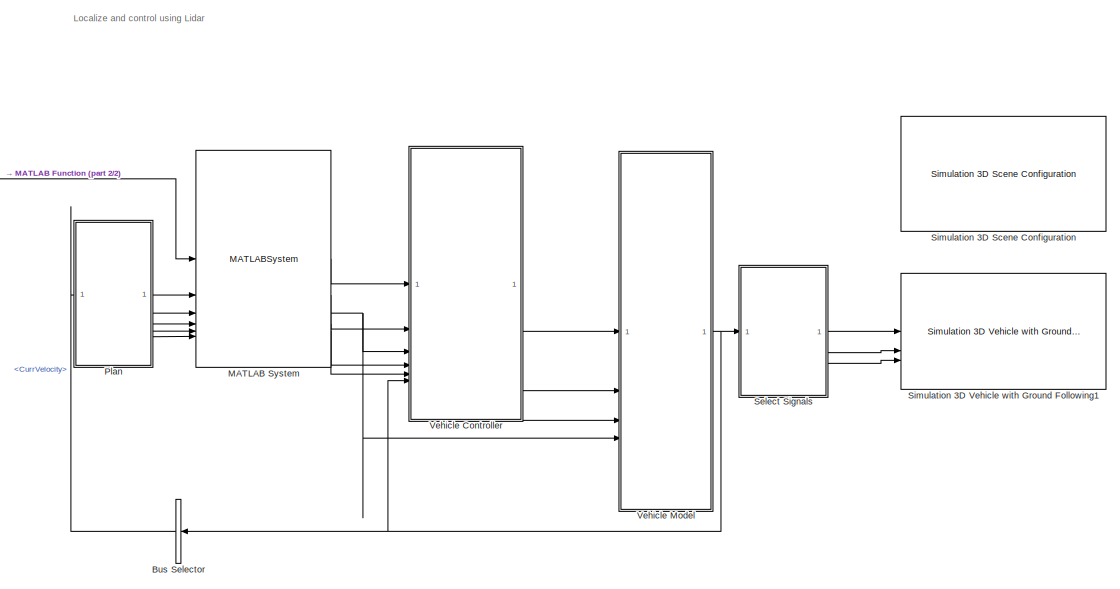
[diagram: root canvas - part 1/2, center side, full height]
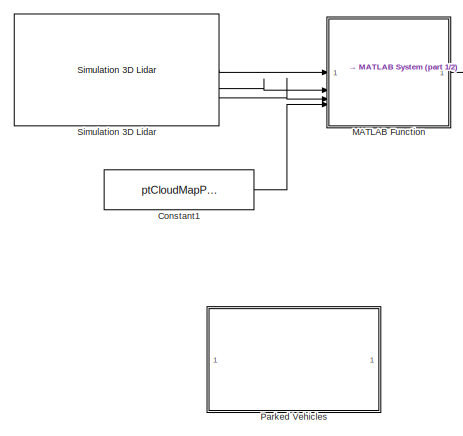
[diagram: root canvas - part 2/2, middle left region]
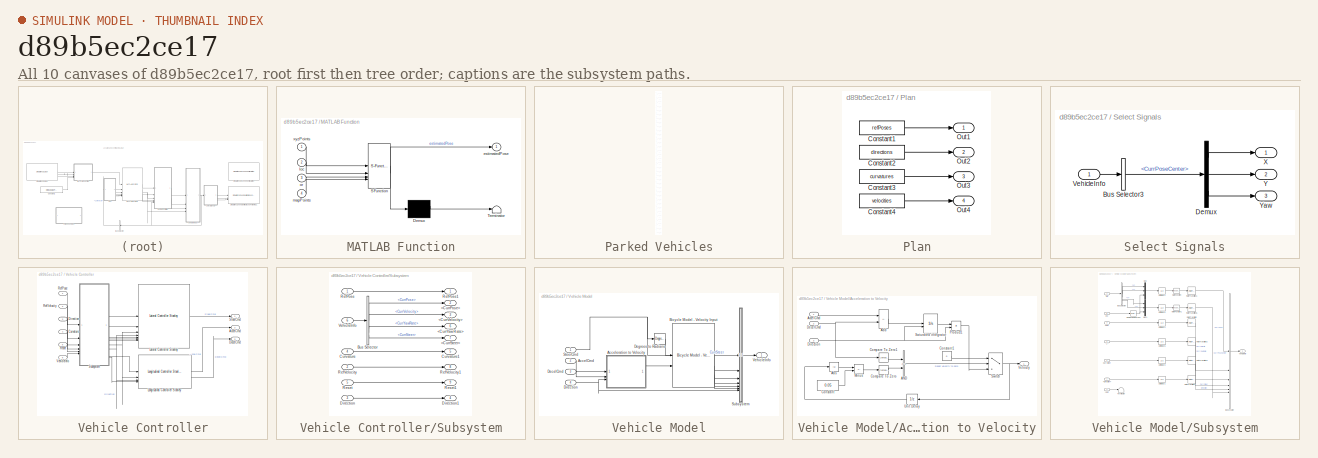
[diagram: thumbnail index - all 10 canvases of the model, root first then tree order]
MODEL slx_d89b5ec2ce17
KIND model
CONFIG AbsTol = auto
CONFIG EnableMultiTasking = off
CONFIG FixedStep = auto
CONFIG MaxStep = auto
CONFIG MinStep = auto
CONFIG PreLoadFcn = data = load('ReferencePathForward.mat');\n\nload('parkingLotPCMapPoints.mat','ptCloudMapPoints');\n\nstartPose = [25.533357  30.0519086033855 180.596809];\n\nhelperSLCreateUtilityBus(1);
CONFIG RelTol = 1e-3
CONFIG SampleTimeConstraint = Unconstrained
CONFIG SolverName = VariableStepAuto
CONFIG StartTime = 0.0
CONFIG StopTime = 28.964
BLOCK [BusSelector] Bus Selector
  OutputSignals = CurrVelocity
BLOCK [Constant] Constant1
  OutDataTypeStr = single
  Value = ptCloudMapPoints
BLOCK [SubSystem] MATLAB Function
  ErrorFcn = Stateflow.Translate.translate
  PermitHierarchicalResolution = ExplicitOnly
  SFBlockType = MATLAB Function
  TreatAsAtomicUnit = on
BLOCK [Demux] MATLAB Function/ Demux 
  Outputs = 1
BLOCK [S-Function] MATLAB Function/ SFunction 
  EnableBusSupport = off
  FunctionName = sf_sfun
  PortCounts = [4 2]
  SFcnIsStateOwnerBlock = off
  SFunctionDeploymentMode = off
  Tag = Stateflow S-Function 2
BLOCK [Terminator] MATLAB Function/ Terminator 
BLOCK [Outport] MATLAB Function/estimatedPose
BLOCK [Inport] MATLAB Function/loc
  Port = 2
BLOCK [Inport] MATLAB Function/mapPoints
  Port = 4
BLOCK [Inport] MATLAB Function/or
  Port = 3
BLOCK [Inport] MATLAB Function/xyzPoints
BLOCK [MATLABSystem] MATLAB System
  HasResetOutput = on
  MaskDisplay = disp(['Helper' char(10) 'Path' char(10) 'Analyzer']);\nport_label('input',1,'CurrPose');\nport_label('input',2,'CurrVelocity');\nport_label('input',3,'RefPoses');\nport_label('input',4,'Directions');\nport_label('input',5,'Curvatures');\nport_label('input',6,'RefVelocities');\nport_label('output',1,'RefPose');\nport_label('output',2,'RefVelocity');\nport_label('output',3,'Direction');\nport_label('output',4...<+46ch>
  MaskType = HelperPathAnalyzer
  SimulateUsing = Interpreted execution
  System = HelperPathAnalyzer
  Wheelbase = 2.6
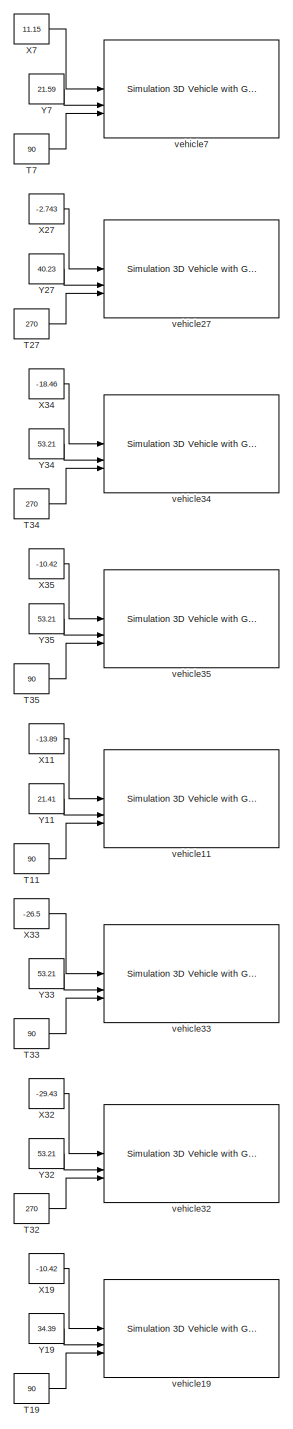
[diagram: Parked Vehicles - part 1/7, full width, top band]
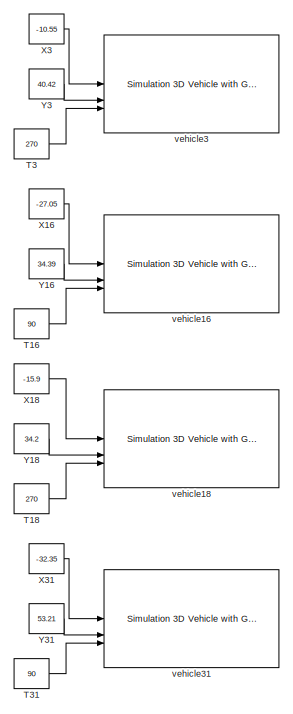
[diagram: Parked Vehicles - part 2/7, full width, top band]
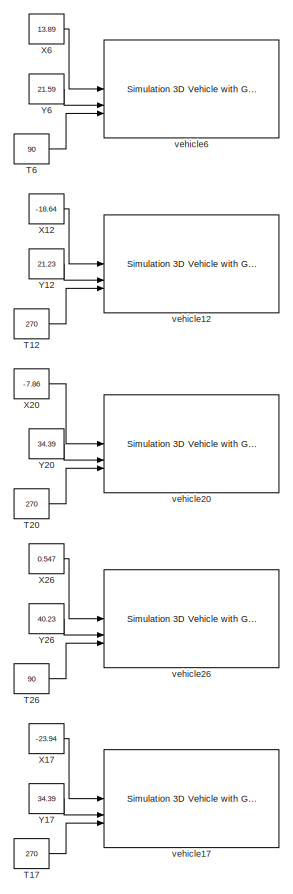
[diagram: Parked Vehicles - part 3/7, full width, middle band]
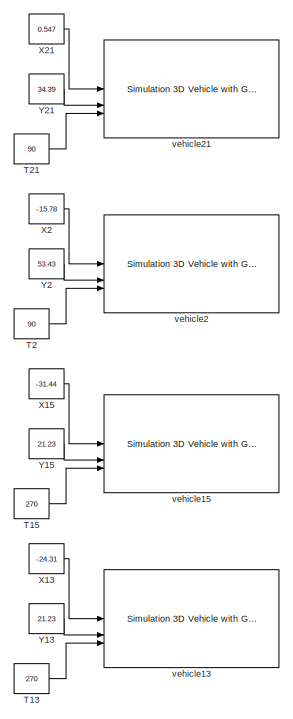
[diagram: Parked Vehicles - part 4/7, full width, middle band]
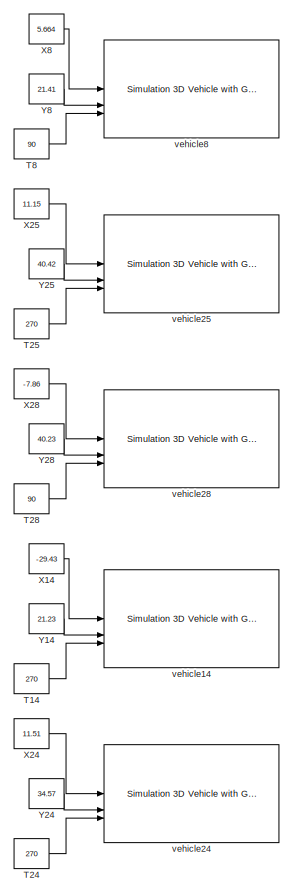
[diagram: Parked Vehicles - part 5/7, full width, bottom band]
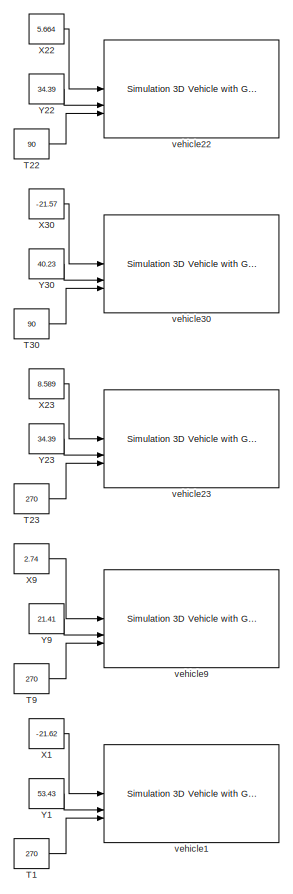
[diagram: Parked Vehicles - part 6/7, full width, bottom band]
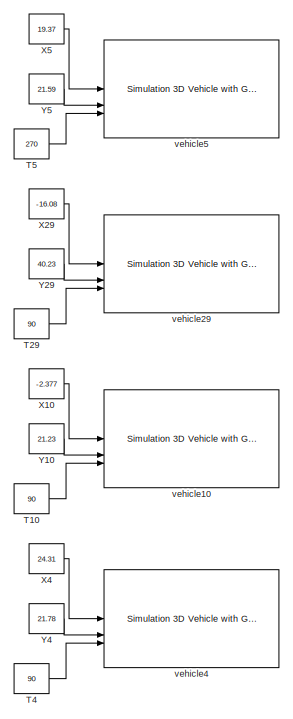
[diagram: Parked Vehicles - part 7/7, full width, bottom band]
BLOCK [SubSystem] Parked Vehicles
BLOCK [Constant] Parked Vehicles/T1
  Value = 270
BLOCK [Constant] Parked Vehicles/T10
  Value = 90
BLOCK [Constant] Parked Vehicles/T11
  Value = 90
BLOCK [Constant] Parked Vehicles/T12
  Value = 270
BLOCK [Constant] Parked Vehicles/T13
  Value = 270
BLOCK [Constant] Parked Vehicles/T14
  Value = 270
BLOCK [Constant] Parked Vehicles/T15
  Value = 270
BLOCK [Constant] Parked Vehicles/T16
  Value = 90
BLOCK [Constant] Parked Vehicles/T17
  Value = 270
BLOCK [Constant] Parked Vehicles/T18
  Value = 270
BLOCK [Constant] Parked Vehicles/T19
  Value = 90
BLOCK [Constant] Parked Vehicles/T2
  Value = 90
BLOCK [Constant] Parked Vehicles/T20
  Value = 270
BLOCK [Constant] Parked Vehicles/T21
  Value = 90
BLOCK [Constant] Parked Vehicles/T22
  Value = 90
BLOCK [Constant] Parked Vehicles/T23
  Value = 270
BLOCK [Constant] Parked Vehicles/T24
  Value = 270
BLOCK [Constant] Parked Vehicles/T25
  Value = 270
BLOCK [Constant] Parked Vehicles/T26
  Value = 90
BLOCK [Constant] Parked Vehicles/T27
  Value = 270
BLOCK [Constant] Parked Vehicles/T28
  Value = 90
BLOCK [Constant] Parked Vehicles/T29
  Value = 90
BLOCK [Constant] Parked Vehicles/T3
  Value = 270
BLOCK [Constant] Parked Vehicles/T30
  Value = 90
BLOCK [Constant] Parked Vehicles/T31
  Value = 90
BLOCK [Constant] Parked Vehicles/T32
  Value = 270
BLOCK [Constant] Parked Vehicles/T33
  Value = 90
BLOCK [Constant] Parked Vehicles/T34
  Value = 270
BLOCK [Constant] Parked Vehicles/T35
  Value = 90
BLOCK [Constant] Parked Vehicles/T4
  Value = 90
BLOCK [Constant] Parked Vehicles/T5
  Value = 270
BLOCK [Constant] Parked Vehicles/T6
  Value = 90
BLOCK [Constant] Parked Vehicles/T7
  Value = 90
BLOCK [Constant] Parked Vehicles/T8
  Value = 90
BLOCK [Constant] Parked Vehicles/T9
  Value = 270
BLOCK [Constant] Parked Vehicles/X1
  Value = -21.62
BLOCK [Constant] Parked Vehicles/X10
  Value = -2.377
BLOCK [Constant] Parked Vehicles/X11
  Value = -13.89
BLOCK [Constant] Parked Vehicles/X12
  Value = -18.64
BLOCK [Constant] Parked Vehicles/X13
  Value = -24.31
BLOCK [Constant] Parked Vehicles/X14
  Value = -29.43
BLOCK [Constant] Parked Vehicles/X15
  Value = -31.44
BLOCK [Constant] Parked Vehicles/X16
  Value = -27.05
BLOCK [Constant] Parked Vehicles/X17
  Value = -23.94
BLOCK [Constant] Parked Vehicles/X18
  Value = -15.9
BLOCK [Constant] Parked Vehicles/X19
  Value = -10.42
BLOCK [Constant] Parked Vehicles/X2
  Value = -15.78
BLOCK [Constant] Parked Vehicles/X20
  Value = -7.86
BLOCK [Constant] Parked Vehicles/X21
  Value = 0.547
BLOCK [Constant] Parked Vehicles/X22
  Value = 5.664
BLOCK [Constant] Parked Vehicles/X23
  Value = 8.589
BLOCK [Constant] Parked Vehicles/X24
  Value = 11.51
BLOCK [Constant] Parked Vehicles/X25
  Value = 11.15
BLOCK [Constant] Parked Vehicles/X26
  Value = 0.547
BLOCK [Constant] Parked Vehicles/X27
  Value = -2.743
BLOCK [Constant] Parked Vehicles/X28
  Value = -7.86
BLOCK [Constant] Parked Vehicles/X29
  Value = -16.08
BLOCK [Constant] Parked Vehicles/X3
  Value = -10.55
BLOCK [Constant] Parked Vehicles/X30
  Value = -21.57
BLOCK [Constant] Parked Vehicles/X31
  Value = -32.35
BLOCK [Constant] Parked Vehicles/X32
  Value = -29.43
BLOCK [Constant] Parked Vehicles/X33
  Value = -26.5
BLOCK [Constant] Parked Vehicles/X34
  Value = -18.46
BLOCK [Constant] Parked Vehicles/X35
  Value = -10.42
BLOCK [Constant] Parked Vehicles/X4
  Value = 24.31
BLOCK [Constant] Parked Vehicles/X5
  Value = 19.37
BLOCK [Constant] Parked Vehicles/X6
  Value = 13.89
BLOCK [Constant] Parked Vehicles/X7
  Value = 11.15
BLOCK [Constant] Parked Vehicles/X8
  Value = 5.664
BLOCK [Constant] Parked Vehicles/X9
  Value = 2.74
BLOCK [Constant] Parked Vehicles/Y1
  Value = 53.43
BLOCK [Constant] Parked Vehicles/Y10
  Value = 21.23
BLOCK [Constant] Parked Vehicles/Y11
  Value = 21.41
BLOCK [Constant] Parked Vehicles/Y12
  Value = 21.23
BLOCK [Constant] Parked Vehicles/Y13
  Value = 21.23
BLOCK [Constant] Parked Vehicles/Y14
  Value = 21.23
BLOCK [Constant] Parked Vehicles/Y15
  Value = 21.23
BLOCK [Constant] Parked Vehicles/Y16
  Value = 34.39
BLOCK [Constant] Parked Vehicles/Y17
  Value = 34.39
BLOCK [Constant] Parked Vehicles/Y18
  Value = 34.2
BLOCK [Constant] Parked Vehicles/Y19
  Value = 34.39
BLOCK [Constant] Parked Vehicles/Y2
  Value = 53.43
BLOCK [Constant] Parked Vehicles/Y20
  Value = 34.39
BLOCK [Constant] Parked Vehicles/Y21
  Value = 34.39
BLOCK [Constant] Parked Vehicles/Y22
  Value = 34.39
BLOCK [Constant] Parked Vehicles/Y23
  Value = 34.39
BLOCK [Constant] Parked Vehicles/Y24
  Value = 34.57
BLOCK [Constant] Parked Vehicles/Y25
  Value = 40.42
BLOCK [Constant] Parked Vehicles/Y26
  Value = 40.23
BLOCK [Constant] Parked Vehicles/Y27
  Value = 40.23
BLOCK [Constant] Parked Vehicles/Y28
  Value = 40.23
BLOCK [Constant] Parked Vehicles/Y29
  Value = 40.23
BLOCK [Constant] Parked Vehicles/Y3
  Value = 40.42
BLOCK [Constant] Parked Vehicles/Y30
  Value = 40.23
BLOCK [Constant] Parked Vehicles/Y31
  Value = 53.21
BLOCK [Constant] Parked Vehicles/Y32
  Value = 53.21
BLOCK [Constant] Parked Vehicles/Y33
  Value = 53.21
BLOCK [Constant] Parked Vehicles/Y34
  Value = 53.21
BLOCK [Constant] Parked Vehicles/Y35
  Value = 53.21
BLOCK [Constant] Parked Vehicles/Y4
  Value = 21.78
BLOCK [Constant] Parked Vehicles/Y5
  Value = 21.59
BLOCK [Constant] Parked Vehicles/Y6
  Value = 21.59
BLOCK [Constant] Parked Vehicles/Y7
  Value = 21.59
BLOCK [Constant] Parked Vehicles/Y8
  Value = 21.41
BLOCK [Constant] Parked Vehicles/Y9
  Value = 21.41
BLOCK [Reference] Parked Vehicles/vehicle1  REF=sim3dautolib/Simulation 3D Vehicle with Ground Following
  LibrarySourceBlock = drivingsim3d/Simulation 3D Vehicle with Ground Following
  Priority = -1
  SourceBlock = sim3dautolib/Simulation 3D Vehicle with Ground Following
  SourceType = Simulation 3D Vehicle with Ground Following
BLOCK [Reference] Parked Vehicles/vehicle10  REF=sim3dautolib/Simulation 3D Vehicle with Ground Following
  LibrarySourceBlock = drivingsim3d/Simulation 3D Vehicle with Ground Following
  Priority = -1
  SourceBlock = sim3dautolib/Simulation 3D Vehicle with Ground Following
  SourceType = Simulation 3D Vehicle with Ground Following
BLOCK [Reference] Parked Vehicles/vehicle11  REF=sim3dautolib/Simulation 3D Vehicle with Ground Following
  LibrarySourceBlock = drivingsim3d/Simulation 3D Vehicle with Ground Following
  Priority = -1
  SourceBlock = sim3dautolib/Simulation 3D Vehicle with Ground Following
  SourceType = Simulation 3D Vehicle with Ground Following
BLOCK [Reference] Parked Vehicles/vehicle12  REF=sim3dautolib/Simulation 3D Vehicle with Ground Following
  LibrarySourceBlock = drivingsim3d/Simulation 3D Vehicle with Ground Following
  Priority = -1
  SourceBlock = sim3dautolib/Simulation 3D Vehicle with Ground Following
  SourceType = Simulation 3D Vehicle with Ground Following
BLOCK [Reference] Parked Vehicles/vehicle13  REF=sim3dautolib/Simulation 3D Vehicle with Ground Following
  LibrarySourceBlock = drivingsim3d/Simulation 3D Vehicle with Ground Following
  Priority = -1
  SourceBlock = sim3dautolib/Simulation 3D Vehicle with Ground Following
  SourceType = Simulation 3D Vehicle with Ground Following
BLOCK [Reference] Parked Vehicles/vehicle14  REF=sim3dautolib/Simulation 3D Vehicle with Ground Following
  LibrarySourceBlock = drivingsim3d/Simulation 3D Vehicle with Ground Following
  Priority = -1
  SourceBlock = sim3dautolib/Simulation 3D Vehicle with Ground Following
  SourceType = Simulation 3D Vehicle with Ground Following
BLOCK [Reference] Parked Vehicles/vehicle15  REF=sim3dautolib/Simulation 3D Vehicle with Ground Following
  LibrarySourceBlock = drivingsim3d/Simulation 3D Vehicle with Ground Following
  Priority = -1
  SourceBlock = sim3dautolib/Simulation 3D Vehicle with Ground Following
  SourceType = Simulation 3D Vehicle with Ground Following
BLOCK [Reference] Parked Vehicles/vehicle16  REF=sim3dautolib/Simulation 3D Vehicle with Ground Following
  LibrarySourceBlock = drivingsim3d/Simulation 3D Vehicle with Ground Following
  Priority = -1
  SourceBlock = sim3dautolib/Simulation 3D Vehicle with Ground Following
  SourceType = Simulation 3D Vehicle with Ground Following
BLOCK [Reference] Parked Vehicles/vehicle17  REF=sim3dautolib/Simulation 3D Vehicle with Ground Following
  LibrarySourceBlock = drivingsim3d/Simulation 3D Vehicle with Ground Following
  Priority = -1
  SourceBlock = sim3dautolib/Simulation 3D Vehicle with Ground Following
  SourceType = Simulation 3D Vehicle with Ground Following
BLOCK [Reference] Parked Vehicles/vehicle18  REF=sim3dautolib/Simulation 3D Vehicle with Ground Following
  LibrarySourceBlock = drivingsim3d/Simulation 3D Vehicle with Ground Following
  Priority = -1
  SourceBlock = sim3dautolib/Simulation 3D Vehicle with Ground Following
  SourceType = Simulation 3D Vehicle with Ground Following
BLOCK [Reference] Parked Vehicles/vehicle19  REF=sim3dautolib/Simulation 3D Vehicle with Ground Following
  LibrarySourceBlock = drivingsim3d/Simulation 3D Vehicle with Ground Following
  Priority = -1
  SourceBlock = sim3dautolib/Simulation 3D Vehicle with Ground Following
  SourceType = Simulation 3D Vehicle with Ground Following
BLOCK [Reference] Parked Vehicles/vehicle2  REF=sim3dautolib/Simulation 3D Vehicle with Ground Following
  LibrarySourceBlock = drivingsim3d/Simulation 3D Vehicle with Ground Following
  Priority = -1
  SourceBlock = sim3dautolib/Simulation 3D Vehicle with Ground Following
  SourceType = Simulation 3D Vehicle with Ground Following
BLOCK [Reference] Parked Vehicles/vehicle20  REF=sim3dautolib/Simulation 3D Vehicle with Ground Following
  LibrarySourceBlock = drivingsim3d/Simulation 3D Vehicle with Ground Following
  Priority = -1
  SourceBlock = sim3dautolib/Simulation 3D Vehicle with Ground Following
  SourceType = Simulation 3D Vehicle with Ground Following
BLOCK [Reference] Parked Vehicles/vehicle21  REF=sim3dautolib/Simulation 3D Vehicle with Ground Following
  LibrarySourceBlock = drivingsim3d/Simulation 3D Vehicle with Ground Following
  Priority = -1
  SourceBlock = sim3dautolib/Simulation 3D Vehicle with Ground Following
  SourceType = Simulation 3D Vehicle with Ground Following
BLOCK [Reference] Parked Vehicles/vehicle22  REF=sim3dautolib/Simulation 3D Vehicle with Ground Following
  LibrarySourceBlock = drivingsim3d/Simulation 3D Vehicle with Ground Following
  Priority = -1
  SourceBlock = sim3dautolib/Simulation 3D Vehicle with Ground Following
  SourceType = Simulation 3D Vehicle with Ground Following
BLOCK [Reference] Parked Vehicles/vehicle23  REF=sim3dautolib/Simulation 3D Vehicle with Ground Following
  LibrarySourceBlock = drivingsim3d/Simulation 3D Vehicle with Ground Following
  Priority = -1
  SourceBlock = sim3dautolib/Simulation 3D Vehicle with Ground Following
  SourceType = Simulation 3D Vehicle with Ground Following
BLOCK [Reference] Parked Vehicles/vehicle24  REF=sim3dautolib/Simulation 3D Vehicle with Ground Following
  LibrarySourceBlock = drivingsim3d/Simulation 3D Vehicle with Ground Following
  Priority = -1
  SourceBlock = sim3dautolib/Simulation 3D Vehicle with Ground Following
  SourceType = Simulation 3D Vehicle with Ground Following
BLOCK [Reference] Parked Vehicles/vehicle25  REF=sim3dautolib/Simulation 3D Vehicle with Ground Following
  LibrarySourceBlock = drivingsim3d/Simulation 3D Vehicle with Ground Following
  Priority = -1
  SourceBlock = sim3dautolib/Simulation 3D Vehicle with Ground Following
  SourceType = Simulation 3D Vehicle with Ground Following
BLOCK [Reference] Parked Vehicles/vehicle26  REF=sim3dautolib/Simulation 3D Vehicle with Ground Following
  LibrarySourceBlock = drivingsim3d/Simulation 3D Vehicle with Ground Following
  Priority = -1
  SourceBlock = sim3dautolib/Simulation 3D Vehicle with Ground Following
  SourceType = Simulation 3D Vehicle with Ground Following
BLOCK [Reference] Parked Vehicles/vehicle27  REF=sim3dautolib/Simulation 3D Vehicle with Ground Following
  LibrarySourceBlock = drivingsim3d/Simulation 3D Vehicle with Ground Following
  Priority = -1
  SourceBlock = sim3dautolib/Simulation 3D Vehicle with Ground Following
  SourceType = Simulation 3D Vehicle with Ground Following
BLOCK [Reference] Parked Vehicles/vehicle28  REF=sim3dautolib/Simulation 3D Vehicle with Ground Following
  LibrarySourceBlock = drivingsim3d/Simulation 3D Vehicle with Ground Following
  Priority = -1
  SourceBlock = sim3dautolib/Simulation 3D Vehicle with Ground Following
  SourceType = Simulation 3D Vehicle with Ground Following
BLOCK [Reference] Parked Vehicles/vehicle29  REF=sim3dautolib/Simulation 3D Vehicle with Ground Following
  LibrarySourceBlock = drivingsim3d/Simulation 3D Vehicle with Ground Following
  Priority = -1
  SourceBlock = sim3dautolib/Simulation 3D Vehicle with Ground Following
  SourceType = Simulation 3D Vehicle with Ground Following
BLOCK [Reference] Parked Vehicles/vehicle3  REF=sim3dautolib/Simulation 3D Vehicle with Ground Following
  LibrarySourceBlock = drivingsim3d/Simulation 3D Vehicle with Ground Following
  Priority = -1
  SourceBlock = sim3dautolib/Simulation 3D Vehicle with Ground Following
  SourceType = Simulation 3D Vehicle with Ground Following
BLOCK [Reference] Parked Vehicles/vehicle30  REF=sim3dautolib/Simulation 3D Vehicle with Ground Following
  LibrarySourceBlock = drivingsim3d/Simulation 3D Vehicle with Ground Following
  Priority = -1
  SourceBlock = sim3dautolib/Simulation 3D Vehicle with Ground Following
  SourceType = Simulation 3D Vehicle with Ground Following
BLOCK [Reference] Parked Vehicles/vehicle31  REF=sim3dautolib/Simulation 3D Vehicle with Ground Following
  LibrarySourceBlock = drivingsim3d/Simulation 3D Vehicle with Ground Following
  Priority = -1
  SourceBlock = sim3dautolib/Simulation 3D Vehicle with Ground Following
  SourceType = Simulation 3D Vehicle with Ground Following
BLOCK [Reference] Parked Vehicles/vehicle32  REF=sim3dautolib/Simulation 3D Vehicle with Ground Following
  LibrarySourceBlock = drivingsim3d/Simulation 3D Vehicle with Ground Following
  Priority = -1
  SourceBlock = sim3dautolib/Simulation 3D Vehicle with Ground Following
  SourceType = Simulation 3D Vehicle with Ground Following
BLOCK [Reference] Parked Vehicles/vehicle33  REF=sim3dautolib/Simulation 3D Vehicle with Ground Following
  LibrarySourceBlock = drivingsim3d/Simulation 3D Vehicle with Ground Following
  Priority = -1
  SourceBlock = sim3dautolib/Simulation 3D Vehicle with Ground Following
  SourceType = Simulation 3D Vehicle with Ground Following
BLOCK [Reference] Parked Vehicles/vehicle34  REF=sim3dautolib/Simulation 3D Vehicle with Ground Following
  LibrarySourceBlock = drivingsim3d/Simulation 3D Vehicle with Ground Following
  Priority = -1
  SourceBlock = sim3dautolib/Simulation 3D Vehicle with Ground Following
  SourceType = Simulation 3D Vehicle with Ground Following
BLOCK [Reference] Parked Vehicles/vehicle35  REF=sim3dautolib/Simulation 3D Vehicle with Ground Following
  LibrarySourceBlock = drivingsim3d/Simulation 3D Vehicle with Ground Following
  Priority = -1
  SourceBlock = sim3dautolib/Simulation 3D Vehicle with Ground Following
  SourceType = Simulation 3D Vehicle with Ground Following
BLOCK [Reference] Parked Vehicles/vehicle4  REF=sim3dautolib/Simulation 3D Vehicle with Ground Following
  LibrarySourceBlock = drivingsim3d/Simulation 3D Vehicle with Ground Following
  Priority = -1
  SourceBlock = sim3dautolib/Simulation 3D Vehicle with Ground Following
  SourceType = Simulation 3D Vehicle with Ground Following
BLOCK [Reference] Parked Vehicles/vehicle5  REF=sim3dautolib/Simulation 3D Vehicle with Ground Following
  LibrarySourceBlock = drivingsim3d/Simulation 3D Vehicle with Ground Following
  Priority = -1
  SourceBlock = sim3dautolib/Simulation 3D Vehicle with Ground Following
  SourceType = Simulation 3D Vehicle with Ground Following
BLOCK [Reference] Parked Vehicles/vehicle6  REF=sim3dautolib/Simulation 3D Vehicle with Ground Following
  LibrarySourceBlock = drivingsim3d/Simulation 3D Vehicle with Ground Following
  Priority = -1
  SourceBlock = sim3dautolib/Simulation 3D Vehicle with Ground Following
  SourceType = Simulation 3D Vehicle with Ground Following
BLOCK [Reference] Parked Vehicles/vehicle7  REF=sim3dautolib/Simulation 3D Vehicle with Ground Following
  LibrarySourceBlock = drivingsim3d/Simulation 3D Vehicle with Ground Following
  Priority = -1
  SourceBlock = sim3dautolib/Simulation 3D Vehicle with Ground Following
  SourceType = Simulation 3D Vehicle with Ground Following
BLOCK [Reference] Parked Vehicles/vehicle8  REF=sim3dautolib/Simulation 3D Vehicle with Ground Following
  LibrarySourceBlock = drivingsim3d/Simulation 3D Vehicle with Ground Following
  Priority = -1
  SourceBlock = sim3dautolib/Simulation 3D Vehicle with Ground Following
  SourceType = Simulation 3D Vehicle with Ground Following
BLOCK [Reference] Parked Vehicles/vehicle9  REF=sim3dautolib/Simulation 3D Vehicle with Ground Following
  LibrarySourceBlock = drivingsim3d/Simulation 3D Vehicle with Ground Following
  Priority = -1
  SourceBlock = sim3dautolib/Simulation 3D Vehicle with Ground Following
  SourceType = Simulation 3D Vehicle with Ground Following
BLOCK [SubSystem] Plan
BLOCK [Constant] Plan/Constant1
  Value = refPoses
  VectorParams1D = off
BLOCK [Constant] Plan/Constant2
  Value = directions
BLOCK [Constant] Plan/Constant3
  Value = curvatures
BLOCK [Constant] Plan/Constant4
  Value = velocities
BLOCK [Outport] Plan/Out1
BLOCK [Outport] Plan/Out2
  Port = 2
BLOCK [Outport] Plan/Out3
  Port = 3
BLOCK [Outport] Plan/Out4
  Port = 4
BLOCK [SubSystem] Select Signals
BLOCK [BusSelector] Select Signals/Bus Selector3
  OutputSignals = CurrPoseCenter
BLOCK [Demux] Select Signals/Demux
  Outputs = 3
BLOCK [Inport] Select Signals/VehicleInfo
BLOCK [Outport] Select Signals/X
  VectorParamsAs1DForOutWhenUnconnected = off
BLOCK [Outport] Select Signals/Y
  Port = 2
  VectorParamsAs1DForOutWhenUnconnected = off
BLOCK [Outport] Select Signals/Yaw
  Port = 3
  VectorParamsAs1DForOutWhenUnconnected = off
BLOCK [Reference] Simulation 3D Lidar  REF=sim3dphyssensorlib/Simulation 3D Lidar
  LibrarySourceBlock = drivingsim3d/Simulation 3D Lidar
  Priority = 1
  SourceBlock = sim3dphyssensorlib/Simulation 3D Lidar
  SourceType = Simulation 3D Lidar
BLOCK [Reference] Simulation 3D Scene Configuration  REF=sim3dlib/Simulation 3D Scene Configuration
  LibrarySourceBlock = drivingsim3d/Simulation 3D Scene Configuration
  Priority = 0
  SourceBlock = sim3dlib/Simulation 3D Scene Configuration
  SourceType = Simulation 3D Scene Configuration
BLOCK [Reference] Simulation 3D Vehicle with Ground Following1  REF=sim3dautolib/Simulation 3D Vehicle with Ground Following
  LibrarySourceBlock = drivingsim3d/Simulation 3D Vehicle with Ground Following
  Priority = -1
  SourceBlock = sim3dautolib/Simulation 3D Vehicle with Ground Following
  SourceType = Simulation 3D Vehicle with Ground Following
BLOCK [SubSystem] Vehicle Controller
BLOCK [Outport] Vehicle Controller/AccelCmd
  Port = 2
  VectorParamsAs1DForOutWhenUnconnected = off
BLOCK [Inport] Vehicle Controller/Curvature
  OutDataTypeStr = double
  Port = 4
  PortDimensions = [1 1]
  SampleTime = [0.050000000000000003,0]
  SamplingMode = Sample based
  SignalType = real
BLOCK [Outport] Vehicle Controller/DecelCmd
  Port = 3
  VectorParamsAs1DForOutWhenUnconnected = off
BLOCK [Inport] Vehicle Controller/Direction
  OutDataTypeStr = double
  Port = 3
  PortDimensions = [1 1]
  SampleTime = [0.050000000000000003,0]
  SamplingMode = Sample based
  SignalType = real
BLOCK [Reference] Vehicle Controller/Lateral Controller Stanley  REF=drivingvehiclecontroller/Lateral Controller Stanley
  SourceBlock = drivingvehiclecontroller/Lateral Controller Stanley
  SourceType = Lateral Controller Stanley
BLOCK [Reference] Vehicle Controller/Longitudinal Controller Stanley  REF=drivingvehiclecontroller/Longitudinal Controller Stanley
  SourceBlock = drivingvehiclecontroller/Longitudinal Controller Stanley
  SourceType = Longitudinal Controller Stanley
BLOCK [Inport] Vehicle Controller/RefPose
  OutDataTypeStr = double
  PortDimensions = [1 3]
  SampleTime = [0.050000000000000003,0]
  SamplingMode = Sample based
  SignalType = real
BLOCK [Inport] Vehicle Controller/RefVelocity
  OutDataTypeStr = double
  Port = 2
  PortDimensions = [1 1]
  SampleTime = [0.050000000000000003,0]
  SamplingMode = Sample based
  SignalType = real
BLOCK [Inport] Vehicle Controller/Reset
  OutDataTypeStr = double
  Port = 5
  PortDimensions = [1 1]
  SampleTime = [0.050000000000000003,0]
  SamplingMode = Sample based
  SignalType = real
BLOCK [Outport] Vehicle Controller/SteerCmd
  VectorParamsAs1DForOutWhenUnconnected = off
BLOCK [SubSystem] Vehicle Controller/Subsystem
BLOCK [Outport] Vehicle Controller/Subsystem/<CurrPose>
  Port = 2
  VectorParamsAs1DForOutWhenUnconnected = off
BLOCK [Outport] Vehicle Controller/Subsystem/<CurrSteer>
  Port = 7
  VectorParamsAs1DForOutWhenUnconnected = off
BLOCK [Outport] Vehicle Controller/Subsystem/<CurrVelocity>
  Port = 3
  VectorParamsAs1DForOutWhenUnconnected = off
BLOCK [Outport] Vehicle Controller/Subsystem/<CurrYawRate>
  Port = 6
  VectorParamsAs1DForOutWhenUnconnected = off
BLOCK [BusSelector] Vehicle Controller/Subsystem/Bus Selector
  OutputSignals = CurrPose,CurrVelocity,CurrYawRate,CurrSteer
BLOCK [Inport] Vehicle Controller/Subsystem/Curvature
  Port = 4
BLOCK [Outport] Vehicle Controller/Subsystem/Curvature1
  Port = 5
  VectorParamsAs1DForOutWhenUnconnected = off
BLOCK [Inport] Vehicle Controller/Subsystem/Direction
  Port = 3
BLOCK [Outport] Vehicle Controller/Subsystem/Direction1
  Port = 4
  VectorParamsAs1DForOutWhenUnconnected = off
BLOCK [Inport] Vehicle Controller/Subsystem/RefPose
BLOCK [Outport] Vehicle Controller/Subsystem/RefPose1
  VectorParamsAs1DForOutWhenUnconnected = off
BLOCK [Inport] Vehicle Controller/Subsystem/RefVelocity
  Port = 2
BLOCK [Outport] Vehicle Controller/Subsystem/RefVelocity1
  Port = 8
  VectorParamsAs1DForOutWhenUnconnected = off
BLOCK [Inport] Vehicle Controller/Subsystem/Reset
  Port = 5
BLOCK [Outport] Vehicle Controller/Subsystem/Reset1
  Port = 9
  VectorParamsAs1DForOutWhenUnconnected = off
BLOCK [Inport] Vehicle Controller/Subsystem/VehicleInfo
  Port = 6
BLOCK [Inport] Vehicle Controller/VehicleInfo
  OutDataTypeStr = Bus: vehicleInfoBus
  Port = 6
BLOCK [SubSystem] Vehicle Model
BLOCK [Inport] Vehicle Model/AccelCmd
  Port = 2
BLOCK [SubSystem] Vehicle Model/Acceleration to Velocity
  TreatAsAtomicUnit = on
BLOCK [Logic] Vehicle Model/Acceleration to Velocity/AND
  AllPortsSameDT = off
  IconShape = distinctive
  OutDataTypeStr = boolean
BLOCK [Abs] Vehicle Model/Acceleration to Velocity/Abs
  SaturateOnIntegerOverflow = off
BLOCK [Inport] Vehicle Model/Acceleration to Velocity/AccelCmd
  PortDimensions = [1 1]
BLOCK [Sum] Vehicle Model/Acceleration to Velocity/Add
  IconShape = rectangular
  Inputs = +-
BLOCK [Reference] Vehicle Model/Acceleration to Velocity/Compare To Zero  REF=simulink/Logic and Bit
Operations/Compare
To Zero
  SourceBlock = simulink/Logic and Bit\nOperations/Compare\nTo Zero
  SourceType = Compare To Zero
BLOCK [Reference] Vehicle Model/Acceleration to Velocity/Compare To Zero1  REF=simulink/Logic and Bit
Operations/Compare
To Zero
  SourceBlock = simulink/Logic and Bit\nOperations/Compare\nTo Zero
  SourceType = Compare To Zero
BLOCK [Constant] Vehicle Model/Acceleration to Velocity/Constant
  Value = 0.05
BLOCK [Constant] Vehicle Model/Acceleration to Velocity/Constant1
  Value = 0
BLOCK [Inport] Vehicle Model/Acceleration to Velocity/DecelCmd
  Port = 2
  PortDimensions = [1 1]
BLOCK [Inport] Vehicle Model/Acceleration to Velocity/Direction
  Port = 3
BLOCK [Sum] Vehicle Model/Acceleration to Velocity/Minus
  IconShape = rectangular
  Inputs = +-
BLOCK [Product] Vehicle Model/Acceleration to Velocity/Product1
BLOCK [Integrator] Vehicle Model/Acceleration to Velocity/Saturated integrator
  AbsoluteTolerance = 1e-3
  ExternalReset = either
  LimitOutput = on
  LowerSaturationLimit = 0
  ZeroCross = off
BLOCK [Switch] Vehicle Model/Acceleration to Velocity/Switch
  Criteria = u2 > Threshold
  InputSameDT = off
  SaturateOnIntegerOverflow = off
BLOCK [UnitDelay] Vehicle Model/Acceleration to Velocity/Unit Delay
  HasFrameUpgradeWarning = on
  SampleTime = -1
BLOCK [Outport] Vehicle Model/Acceleration to Velocity/Velocity
  VectorParamsAs1DForOutWhenUnconnected = off
BLOCK [Reference] Vehicle Model/Bicycle Model - Velocity Input  REF=autolibshared/Bicycle Model - Velocity Input
  LibrarySourceBlock = drivingscenarioandsensors/Bicycle Model - Velocity Input
  SourceBlock = autolibshared/Bicycle Model - Velocity Input
  SourceType = Vehicle Body 3DOF Lateral
BLOCK [Inport] Vehicle Model/DecelCmd
  Port = 3
BLOCK [Reference] Vehicle Model/Degrees to Radians  REF=simulink_extras/Transformations/Degrees to
Radians
  SourceBlock = simulink_extras/Transformations/Degrees to\nRadians
  SourceType = DegreesToRadians
BLOCK [Inport] Vehicle Model/Direction
  Port = 4
BLOCK [Inport] Vehicle Model/SteerCmd
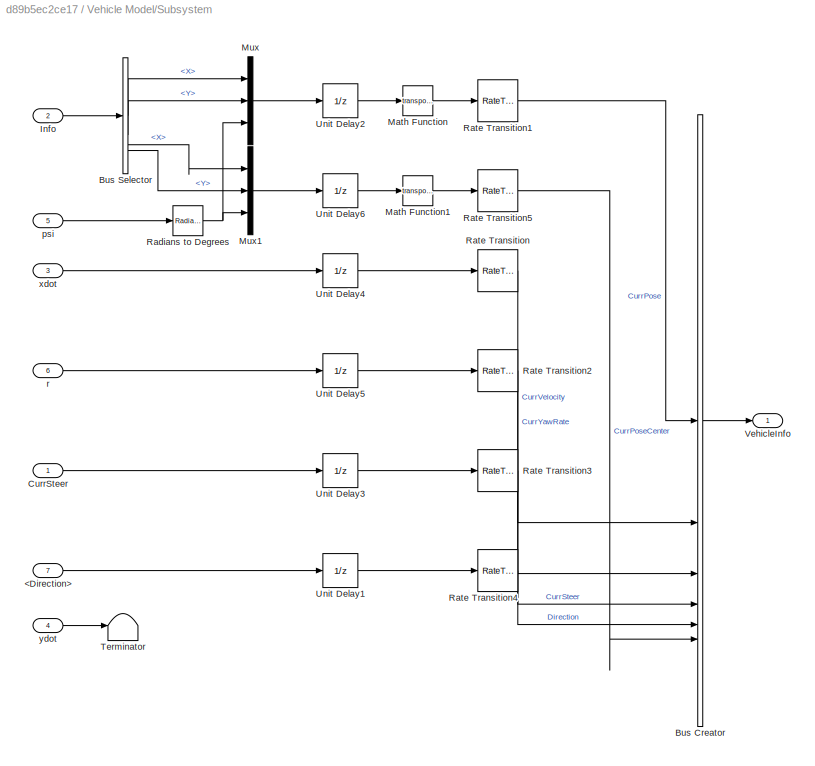
BLOCK [SubSystem] Vehicle Model/Subsystem
BLOCK [Inport] Vehicle Model/Subsystem/<Direction>
  Port = 7
BLOCK [BusCreator] Vehicle Model/Subsystem/Bus Creator
  DisplayOption = bar
  InheritFromInputs = on
  Inputs = 6
  NonVirtualBus = on
  OutDataTypeStr = Bus: vehicleInfoBus
BLOCK [BusSelector] Vehicle Model/Subsystem/Bus Selector
  OutputSignals = InertFrm.RearAxl.Disp.X,InertFrm.RearAxl.Disp.Y,InertFrm.Cg.Disp.X,InertFrm.Cg.Disp.Y
BLOCK [Inport] Vehicle Model/Subsystem/CurrSteer
BLOCK [Inport] Vehicle Model/Subsystem/Info
  Port = 2
BLOCK [Math] Vehicle Model/Subsystem/Math Function
  Operator = transpose
  SignedPower = on
BLOCK [Math] Vehicle Model/Subsystem/Math Function1
  Operator = transpose
  SignedPower = on
BLOCK [Mux] Vehicle Model/Subsystem/Mux
  DisplayOption = bar
  Inputs = 3
BLOCK [Mux] Vehicle Model/Subsystem/Mux1
  DisplayOption = bar
  Inputs = 3
BLOCK [Reference] Vehicle Model/Subsystem/Radians to Degrees  REF=simulink_extras/Transformations/Radians
to Degrees
  SourceBlock = simulink_extras/Transformations/Radians\nto Degrees
  SourceType = RadiansToDegrees
BLOCK [RateTransition] Vehicle Model/Subsystem/Rate Transition
  OutPortSampleTime = 0.05
BLOCK [RateTransition] Vehicle Model/Subsystem/Rate Transition1
  InitialCondition = startPose
  OutPortSampleTime = 0.05
BLOCK [RateTransition] Vehicle Model/Subsystem/Rate Transition2
  OutPortSampleTime = 0.05
BLOCK [RateTransition] Vehicle Model/Subsystem/Rate Transition3
  OutPortSampleTime = 0.05
BLOCK [RateTransition] Vehicle Model/Subsystem/Rate Transition4
  InitialCondition = 1
  OutPortSampleTime = 0.05
BLOCK [RateTransition] Vehicle Model/Subsystem/Rate Transition5
  InitialCondition = [startPose(1)-cosd(startPose(3))*centerToRear,startPose(2)-sind(startPose(3))*centerToRear,startPose(3)]
  OutPortSampleTime = 0.05
BLOCK [Terminator] Vehicle Model/Subsystem/Terminator
BLOCK [UnitDelay] Vehicle Model/Subsystem/Unit Delay1
  HasFrameUpgradeWarning = on
  InitialCondition = 1
  SampleTime = -1
BLOCK [UnitDelay] Vehicle Model/Subsystem/Unit Delay2
  HasFrameUpgradeWarning = on
  InitialCondition = startPose
  SampleTime = -1
BLOCK [UnitDelay] Vehicle Model/Subsystem/Unit Delay3
  HasFrameUpgradeWarning = on
  SampleTime = -1
BLOCK [UnitDelay] Vehicle Model/Subsystem/Unit Delay4
  HasFrameUpgradeWarning = on
  SampleTime = -1
BLOCK [UnitDelay] Vehicle Model/Subsystem/Unit Delay5
  HasFrameUpgradeWarning = on
  SampleTime = -1
BLOCK [UnitDelay] Vehicle Model/Subsystem/Unit Delay6
  HasFrameUpgradeWarning = on
  InitialCondition = [startPose(1)-cosd(startPose(3))*centerToRear,startPose(2)-sind(startPose(3))*centerToRear,startPose(3)]
  SampleTime = -1
BLOCK [Outport] Vehicle Model/Subsystem/VehicleInfo
  VectorParamsAs1DForOutWhenUnconnected = off
BLOCK [Inport] Vehicle Model/Subsystem/psi
  Port = 5
BLOCK [Inport] Vehicle Model/Subsystem/r
  Port = 6
BLOCK [Inport] Vehicle Model/Subsystem/xdot
  Port = 3
BLOCK [Inport] Vehicle Model/Subsystem/ydot
  Port = 4
BLOCK [Outport] Vehicle Model/VehicleInfo
  VectorParamsAs1DForOutWhenUnconnected = off
ANNOTATION (root): Localize and control using Lidar
LINE Bus Selector:1 -> MATLAB System:2
LINE Constant1:1 -> MATLAB Function:4
LINE MATLAB Function:1 -> MATLAB System:1
LINE MATLAB System:1 -> Vehicle Controller:1
LINE MATLAB System:2 -> Vehicle Controller:2
NET MATLAB System:3 -> Vehicle Controller:3, Vehicle Model:4
LINE MATLAB System:4 -> Vehicle Controller:4
LINE MATLAB System:5 -> Vehicle Controller:5
LINE Parked Vehicles/T10:1 -> Parked Vehicles/vehicle10:3
LINE Parked Vehicles/T11:1 -> Parked Vehicles/vehicle11:3
LINE Parked Vehicles/T12:1 -> Parked Vehicles/vehicle12:3
LINE Parked Vehicles/T13:1 -> Parked Vehicles/vehicle13:3
LINE Parked Vehicles/T14:1 -> Parked Vehicles/vehicle14:3
LINE Parked Vehicles/T15:1 -> Parked Vehicles/vehicle15:3
LINE Parked Vehicles/T16:1 -> Parked Vehicles/vehicle16:3
LINE Parked Vehicles/T17:1 -> Parked Vehicles/vehicle17:3
LINE Parked Vehicles/T18:1 -> Parked Vehicles/vehicle18:3
LINE Parked Vehicles/T19:1 -> Parked Vehicles/vehicle19:3
LINE Parked Vehicles/T1:1 -> Parked Vehicles/vehicle1:3
LINE Parked Vehicles/T20:1 -> Parked Vehicles/vehicle20:3
LINE Parked Vehicles/T21:1 -> Parked Vehicles/vehicle21:3
LINE Parked Vehicles/T22:1 -> Parked Vehicles/vehicle22:3
LINE Parked Vehicles/T23:1 -> Parked Vehicles/vehicle23:3
LINE Parked Vehicles/T24:1 -> Parked Vehicles/vehicle24:3
LINE Parked Vehicles/T25:1 -> Parked Vehicles/vehicle25:3
LINE Parked Vehicles/T26:1 -> Parked Vehicles/vehicle26:3
LINE Parked Vehicles/T27:1 -> Parked Vehicles/vehicle27:3
LINE Parked Vehicles/T28:1 -> Parked Vehicles/vehicle28:3
LINE Parked Vehicles/T29:1 -> Parked Vehicles/vehicle29:3
LINE Parked Vehicles/T2:1 -> Parked Vehicles/vehicle2:3
LINE Parked Vehicles/T30:1 -> Parked Vehicles/vehicle30:3
LINE Parked Vehicles/T31:1 -> Parked Vehicles/vehicle31:3
LINE Parked Vehicles/T32:1 -> Parked Vehicles/vehicle32:3
LINE Parked Vehicles/T33:1 -> Parked Vehicles/vehicle33:3
LINE Parked Vehicles/T34:1 -> Parked Vehicles/vehicle34:3
LINE Parked Vehicles/T35:1 -> Parked Vehicles/vehicle35:3
LINE Parked Vehicles/T3:1 -> Parked Vehicles/vehicle3:3
LINE Parked Vehicles/T4:1 -> Parked Vehicles/vehicle4:3
LINE Parked Vehicles/T5:1 -> Parked Vehicles/vehicle5:3
LINE Parked Vehicles/T6:1 -> Parked Vehicles/vehicle6:3
LINE Parked Vehicles/T7:1 -> Parked Vehicles/vehicle7:3
LINE Parked Vehicles/T8:1 -> Parked Vehicles/vehicle8:3
LINE Parked Vehicles/T9:1 -> Parked Vehicles/vehicle9:3
LINE Parked Vehicles/X10:1 -> Parked Vehicles/vehicle10:1
LINE Parked Vehicles/X11:1 -> Parked Vehicles/vehicle11:1
LINE Parked Vehicles/X12:1 -> Parked Vehicles/vehicle12:1
LINE Parked Vehicles/X13:1 -> Parked Vehicles/vehicle13:1
LINE Parked Vehicles/X14:1 -> Parked Vehicles/vehicle14:1
LINE Parked Vehicles/X15:1 -> Parked Vehicles/vehicle15:1
LINE Parked Vehicles/X16:1 -> Parked Vehicles/vehicle16:1
LINE Parked Vehicles/X17:1 -> Parked Vehicles/vehicle17:1
LINE Parked Vehicles/X18:1 -> Parked Vehicles/vehicle18:1
LINE Parked Vehicles/X19:1 -> Parked Vehicles/vehicle19:1
LINE Parked Vehicles/X1:1 -> Parked Vehicles/vehicle1:1
LINE Parked Vehicles/X20:1 -> Parked Vehicles/vehicle20:1
LINE Parked Vehicles/X21:1 -> Parked Vehicles/vehicle21:1
LINE Parked Vehicles/X22:1 -> Parked Vehicles/vehicle22:1
LINE Parked Vehicles/X23:1 -> Parked Vehicles/vehicle23:1
LINE Parked Vehicles/X24:1 -> Parked Vehicles/vehicle24:1
LINE Parked Vehicles/X25:1 -> Parked Vehicles/vehicle25:1
LINE Parked Vehicles/X26:1 -> Parked Vehicles/vehicle26:1
LINE Parked Vehicles/X27:1 -> Parked Vehicles/vehicle27:1
LINE Parked Vehicles/X28:1 -> Parked Vehicles/vehicle28:1
LINE Parked Vehicles/X29:1 -> Parked Vehicles/vehicle29:1
LINE Parked Vehicles/X2:1 -> Parked Vehicles/vehicle2:1
LINE Parked Vehicles/X30:1 -> Parked Vehicles/vehicle30:1
LINE Parked Vehicles/X31:1 -> Parked Vehicles/vehicle31:1
LINE Parked Vehicles/X32:1 -> Parked Vehicles/vehicle32:1
LINE Parked Vehicles/X33:1 -> Parked Vehicles/vehicle33:1
LINE Parked Vehicles/X34:1 -> Parked Vehicles/vehicle34:1
LINE Parked Vehicles/X35:1 -> Parked Vehicles/vehicle35:1
LINE Parked Vehicles/X3:1 -> Parked Vehicles/vehicle3:1
LINE Parked Vehicles/X4:1 -> Parked Vehicles/vehicle4:1
LINE Parked Vehicles/X5:1 -> Parked Vehicles/vehicle5:1
LINE Parked Vehicles/X6:1 -> Parked Vehicles/vehicle6:1
LINE Parked Vehicles/X7:1 -> Parked Vehicles/vehicle7:1
LINE Parked Vehicles/X8:1 -> Parked Vehicles/vehicle8:1
LINE Parked Vehicles/X9:1 -> Parked Vehicles/vehicle9:1
LINE Parked Vehicles/Y10:1 -> Parked Vehicles/vehicle10:2
LINE Parked Vehicles/Y11:1 -> Parked Vehicles/vehicle11:2
LINE Parked Vehicles/Y12:1 -> Parked Vehicles/vehicle12:2
LINE Parked Vehicles/Y13:1 -> Parked Vehicles/vehicle13:2
LINE Parked Vehicles/Y14:1 -> Parked Vehicles/vehicle14:2
LINE Parked Vehicles/Y15:1 -> Parked Vehicles/vehicle15:2
LINE Parked Vehicles/Y16:1 -> Parked Vehicles/vehicle16:2
LINE Parked Vehicles/Y17:1 -> Parked Vehicles/vehicle17:2
LINE Parked Vehicles/Y18:1 -> Parked Vehicles/vehicle18:2
LINE Parked Vehicles/Y19:1 -> Parked Vehicles/vehicle19:2
LINE Parked Vehicles/Y1:1 -> Parked Vehicles/vehicle1:2
LINE Parked Vehicles/Y20:1 -> Parked Vehicles/vehicle20:2
LINE Parked Vehicles/Y21:1 -> Parked Vehicles/vehicle21:2
LINE Parked Vehicles/Y22:1 -> Parked Vehicles/vehicle22:2
LINE Parked Vehicles/Y23:1 -> Parked Vehicles/vehicle23:2
LINE Parked Vehicles/Y24:1 -> Parked Vehicles/vehicle24:2
LINE Parked Vehicles/Y25:1 -> Parked Vehicles/vehicle25:2
LINE Parked Vehicles/Y26:1 -> Parked Vehicles/vehicle26:2
LINE Parked Vehicles/Y27:1 -> Parked Vehicles/vehicle27:2
LINE Parked Vehicles/Y28:1 -> Parked Vehicles/vehicle28:2
LINE Parked Vehicles/Y29:1 -> Parked Vehicles/vehicle29:2
LINE Parked Vehicles/Y2:1 -> Parked Vehicles/vehicle2:2
LINE Parked Vehicles/Y30:1 -> Parked Vehicles/vehicle30:2
LINE Parked Vehicles/Y31:1 -> Parked Vehicles/vehicle31:2
LINE Parked Vehicles/Y32:1 -> Parked Vehicles/vehicle32:2
LINE Parked Vehicles/Y33:1 -> Parked Vehicles/vehicle33:2
LINE Parked Vehicles/Y34:1 -> Parked Vehicles/vehicle34:2
LINE Parked Vehicles/Y35:1 -> Parked Vehicles/vehicle35:2
LINE Parked Vehicles/Y3:1 -> Parked Vehicles/vehicle3:2
LINE Parked Vehicles/Y4:1 -> Parked Vehicles/vehicle4:2
LINE Parked Vehicles/Y5:1 -> Parked Vehicles/vehicle5:2
LINE Parked Vehicles/Y6:1 -> Parked Vehicles/vehicle6:2
LINE Parked Vehicles/Y7:1 -> Parked Vehicles/vehicle7:2
LINE Parked Vehicles/Y8:1 -> Parked Vehicles/vehicle8:2
LINE Parked Vehicles/Y9:1 -> Parked Vehicles/vehicle9:2
LINE Plan/Constant1:1 -> Plan/Out1:1
LINE Plan/Constant2:1 -> Plan/Out2:1
LINE Plan/Constant3:1 -> Plan/Out3:1
LINE Plan/Constant4:1 -> Plan/Out4:1
LINE Plan:1 -> MATLAB System:3
LINE Plan:2 -> MATLAB System:4
LINE Plan:3 -> MATLAB System:5
LINE Plan:4 -> MATLAB System:6
LINE Select Signals/Bus Selector3:1 -> Select Signals/Demux:1
LINE Select Signals/Demux:1 -> Select Signals/X:1
LINE Select Signals/Demux:2 -> Select Signals/Y:1
LINE Select Signals/Demux:3 -> Select Signals/Yaw:1
LINE Select Signals/VehicleInfo:1 -> Select Signals/Bus Selector3:1
LINE Select Signals:1 -> Simulation 3D Vehicle with Ground Following1:1
LINE Select Signals:2 -> Simulation 3D Vehicle with Ground Following1:2
LINE Select Signals:3 -> Simulation 3D Vehicle with Ground Following1:3
LINE Simulation 3D Lidar:1 -> MATLAB Function:1
LINE Simulation 3D Lidar:2 -> MATLAB Function:2
LINE Simulation 3D Lidar:3 -> MATLAB Function:3
LINE Vehicle Controller/Curvature:1 -> Vehicle Controller/Subsystem:4
LINE Vehicle Controller/Direction:1 -> Vehicle Controller/Subsystem:3
LINE Vehicle Controller/Lateral Controller Stanley:1 -> Vehicle Controller/SteerCmd:1
LINE Vehicle Controller/Longitudinal Controller Stanley:1 -> Vehicle Controller/AccelCmd:1
LINE Vehicle Controller/Longitudinal Controller Stanley:2 -> Vehicle Controller/DecelCmd:1
LINE Vehicle Controller/RefPose:1 -> Vehicle Controller/Subsystem:1
LINE Vehicle Controller/RefVelocity:1 -> Vehicle Controller/Subsystem:2
LINE Vehicle Controller/Reset:1 -> Vehicle Controller/Subsystem:5
LINE Vehicle Controller/Subsystem/Bus Selector:1 -> Vehicle Controller/Subsystem/<CurrPose>:1
LINE Vehicle Controller/Subsystem/Bus Selector:2 -> Vehicle Controller/Subsystem/<CurrVelocity>:1
LINE Vehicle Controller/Subsystem/Bus Selector:3 -> Vehicle Controller/Subsystem/<CurrYawRate>:1
LINE Vehicle Controller/Subsystem/Bus Selector:4 -> Vehicle Controller/Subsystem/<CurrSteer>:1
LINE Vehicle Controller/Subsystem/Curvature:1 -> Vehicle Controller/Subsystem/Curvature1:1
LINE Vehicle Controller/Subsystem/Direction:1 -> Vehicle Controller/Subsystem/Direction1:1
LINE Vehicle Controller/Subsystem/RefPose:1 -> Vehicle Controller/Subsystem/RefPose1:1
LINE Vehicle Controller/Subsystem/RefVelocity:1 -> Vehicle Controller/Subsystem/RefVelocity1:1
LINE Vehicle Controller/Subsystem/Reset:1 -> Vehicle Controller/Subsystem/Reset1:1
LINE Vehicle Controller/Subsystem/VehicleInfo:1 -> Vehicle Controller/Subsystem/Bus Selector:1
LINE Vehicle Controller/Subsystem:1 -> Vehicle Controller/Lateral Controller Stanley:1
LINE Vehicle Controller/Subsystem:2 -> Vehicle Controller/Lateral Controller Stanley:2
NET Vehicle Controller/Subsystem:3 -> Vehicle Controller/Lateral Controller Stanley:3, Vehicle Controller/Longitudinal Controller Stanley:2
NET Vehicle Controller/Subsystem:4 -> Vehicle Controller/Lateral Controller Stanley:4, Vehicle Controller/Longitudinal Controller Stanley:3
LINE Vehicle Controller/Subsystem:5 -> Vehicle Controller/Lateral Controller Stanley:5
LINE Vehicle Controller/Subsystem:6 -> Vehicle Controller/Lateral Controller Stanley:6
LINE Vehicle Controller/Subsystem:7 -> Vehicle Controller/Lateral Controller Stanley:7
LINE Vehicle Controller/Subsystem:8 -> Vehicle Controller/Longitudinal Controller Stanley:1
LINE Vehicle Controller/Subsystem:9 -> Vehicle Controller/Longitudinal Controller Stanley:4
LINE Vehicle Controller/VehicleInfo:1 -> Vehicle Controller/Subsystem:6
LINE Vehicle Controller:1 -> Vehicle Model:1
LINE Vehicle Controller:2 -> Vehicle Model:2
LINE Vehicle Controller:3 -> Vehicle Model:3
LINE Vehicle Model/AccelCmd:1 -> Vehicle Model/Acceleration to Velocity:1
LINE Vehicle Model/Acceleration to Velocity/AND:1 -> Vehicle Model/Acceleration to Velocity/Switch:2
LINE Vehicle Model/Acceleration to Velocity/Abs:1 -> Vehicle Model/Acceleration to Velocity/Minus:1
LINE Vehicle Model/Acceleration to Velocity/AccelCmd:1 -> Vehicle Model/Acceleration to Velocity/Add:1
LINE Vehicle Model/Acceleration to Velocity/Add:1 -> Vehicle Model/Acceleration to Velocity/Saturated integrator:1
LINE Vehicle Model/Acceleration to Velocity/Compare To Zero1:1 -> Vehicle Model/Acceleration to Velocity/AND:1
LINE Vehicle Model/Acceleration to Velocity/Compare To Zero:1 -> Vehicle Model/Acceleration to Velocity/AND:2
LINE Vehicle Model/Acceleration to Velocity/Constant1:1 -> Vehicle Model/Acceleration to Velocity/Switch:1
LINE Vehicle Model/Acceleration to Velocity/Constant:1 -> Vehicle Model/Acceleration to Velocity/Minus:2
NET Vehicle Model/Acceleration to Velocity/DecelCmd:1 -> Vehicle Model/Acceleration to Velocity/Add:2, Vehicle Model/Acceleration to Velocity/Compare To Zero1:1
NET Vehicle Model/Acceleration to Velocity/Direction:1 -> Vehicle Model/Acceleration to Velocity/Product1:2, Vehicle Model/Acceleration to Velocity/Saturated integrator:2
LINE Vehicle Model/Acceleration to Velocity/Minus:1 -> Vehicle Model/Acceleration to Velocity/Compare To Zero:1
LINE Vehicle Model/Acceleration to Velocity/Product1:1 -> Vehicle Model/Acceleration to Velocity/Switch:3
LINE Vehicle Model/Acceleration to Velocity/Saturated integrator:1 -> Vehicle Model/Acceleration to Velocity/Product1:1
NET Vehicle Model/Acceleration to Velocity/Switch:1 -> Vehicle Model/Acceleration to Velocity/Unit Delay:1, Vehicle Model/Acceleration to Velocity/Velocity:1
LINE Vehicle Model/Acceleration to Velocity/Unit Delay:1 -> Vehicle Model/Acceleration to Velocity/Abs:1
LINE Vehicle Model/Acceleration to Velocity:1 -> Vehicle Model/Bicycle Model - Velocity Input:2
LINE Vehicle Model/Bicycle Model - Velocity Input:1 -> Vehicle Model/Subsystem:2
LINE Vehicle Model/Bicycle Model - Velocity Input:2 -> Vehicle Model/Subsystem:3
LINE Vehicle Model/Bicycle Model - Velocity Input:3 -> Vehicle Model/Subsystem:4
LINE Vehicle Model/Bicycle Model - Velocity Input:4 -> Vehicle Model/Subsystem:5
LINE Vehicle Model/Bicycle Model - Velocity Input:5 -> Vehicle Model/Subsystem:6
LINE Vehicle Model/DecelCmd:1 -> Vehicle Model/Acceleration to Velocity:2
LINE Vehicle Model/Degrees to Radians:1 -> Vehicle Model/Bicycle Model - Velocity Input:1
NET Vehicle Model/Direction:1 -> Vehicle Model/Acceleration to Velocity:3, Vehicle Model/Subsystem:7
NET Vehicle Model/SteerCmd:1 -> Vehicle Model/Degrees to Radians:1, Vehicle Model/Subsystem:1
LINE Vehicle Model/Subsystem/<Direction>:1 -> Vehicle Model/Subsystem/Unit Delay1:1
LINE Vehicle Model/Subsystem/Bus Creator:1 -> Vehicle Model/Subsystem/VehicleInfo:1
LINE Vehicle Model/Subsystem/Bus Selector:1 -> Vehicle Model/Subsystem/Mux:1
LINE Vehicle Model/Subsystem/Bus Selector:2 -> Vehicle Model/Subsystem/Mux:2
LINE Vehicle Model/Subsystem/Bus Selector:3 -> Vehicle Model/Subsystem/Mux1:1
LINE Vehicle Model/Subsystem/Bus Selector:4 -> Vehicle Model/Subsystem/Mux1:2
LINE Vehicle Model/Subsystem/CurrSteer:1 -> Vehicle Model/Subsystem/Unit Delay3:1
LINE Vehicle Model/Subsystem/Info:1 -> Vehicle Model/Subsystem/Bus Selector:1
LINE Vehicle Model/Subsystem/Math Function1:1 -> Vehicle Model/Subsystem/Rate Transition5:1
LINE Vehicle Model/Subsystem/Math Function:1 -> Vehicle Model/Subsystem/Rate Transition1:1
LINE Vehicle Model/Subsystem/Mux1:1 -> Vehicle Model/Subsystem/Unit Delay6:1
LINE Vehicle Model/Subsystem/Mux:1 -> Vehicle Model/Subsystem/Unit Delay2:1
NET Vehicle Model/Subsystem/Radians to Degrees:1 -> Vehicle Model/Subsystem/Mux1:3, Vehicle Model/Subsystem/Mux:3
LINE Vehicle Model/Subsystem/Rate Transition1:1 -> Vehicle Model/Subsystem/Bus Creator:1
LINE Vehicle Model/Subsystem/Rate Transition2:1 -> Vehicle Model/Subsystem/Bus Creator:3
LINE Vehicle Model/Subsystem/Rate Transition3:1 -> Vehicle Model/Subsystem/Bus Creator:4
LINE Vehicle Model/Subsystem/Rate Transition4:1 -> Vehicle Model/Subsystem/Bus Creator:5
LINE Vehicle Model/Subsystem/Rate Transition5:1 -> Vehicle Model/Subsystem/Bus Creator:6
LINE Vehicle Model/Subsystem/Rate Transition:1 -> Vehicle Model/Subsystem/Bus Creator:2
LINE Vehicle Model/Subsystem/Unit Delay1:1 -> Vehicle Model/Subsystem/Rate Transition4:1
LINE Vehicle Model/Subsystem/Unit Delay2:1 -> Vehicle Model/Subsystem/Math Function:1
LINE Vehicle Model/Subsystem/Unit Delay3:1 -> Vehicle Model/Subsystem/Rate Transition3:1
LINE Vehicle Model/Subsystem/Unit Delay4:1 -> Vehicle Model/Subsystem/Rate Transition:1
LINE Vehicle Model/Subsystem/Unit Delay5:1 -> Vehicle Model/Subsystem/Rate Transition2:1
LINE Vehicle Model/Subsystem/Unit Delay6:1 -> Vehicle Model/Subsystem/Math Function1:1
LINE Vehicle Model/Subsystem/psi:1 -> Vehicle Model/Subsystem/Radians to Degrees:1
LINE Vehicle Model/Subsystem/r:1 -> Vehicle Model/Subsystem/Unit Delay5:1
LINE Vehicle Model/Subsystem/xdot:1 -> Vehicle Model/Subsystem/Unit Delay4:1
LINE Vehicle Model/Subsystem/ydot:1 -> Vehicle Model/Subsystem/Terminator:1
LINE Vehicle Model/Subsystem:1 -> Vehicle Model/VehicleInfo:1
NET Vehicle Model:1 -> Bus Selector:1, Select Signals:1, Vehicle Controller:6
note: NET lines group one-source signal fan-out (src -> all destinations, sorted); 1:1 wires keep LINE
CHART MATLAB Function states=1 transitions=1
  STATE_LABEL 'eML_blk_kernel()'
  STATE_LABEL 'SCRIPT:\nfunction estimatedPose = localize(xyzPoints,loc,or,mapPoints)\n    \n    persistent initPose frameCount ndtMap;\n    coder.extrinsic("helperLidarLocalizerNDT","pcmapndt","pointCloud","selectSubmap","rigid3d");\n    submapSize = [30 30 5];\n\n    if isempty(ndtMap)\n        rng(0)\n        ptMap = pointCloud(mapPoints);\n        ndtMap = pcmapndt(ptMap,1);\n    end\n    \n    if isempty(frameCount)\n   ...<+585ch>'
CHART  states=0 transitions=0
